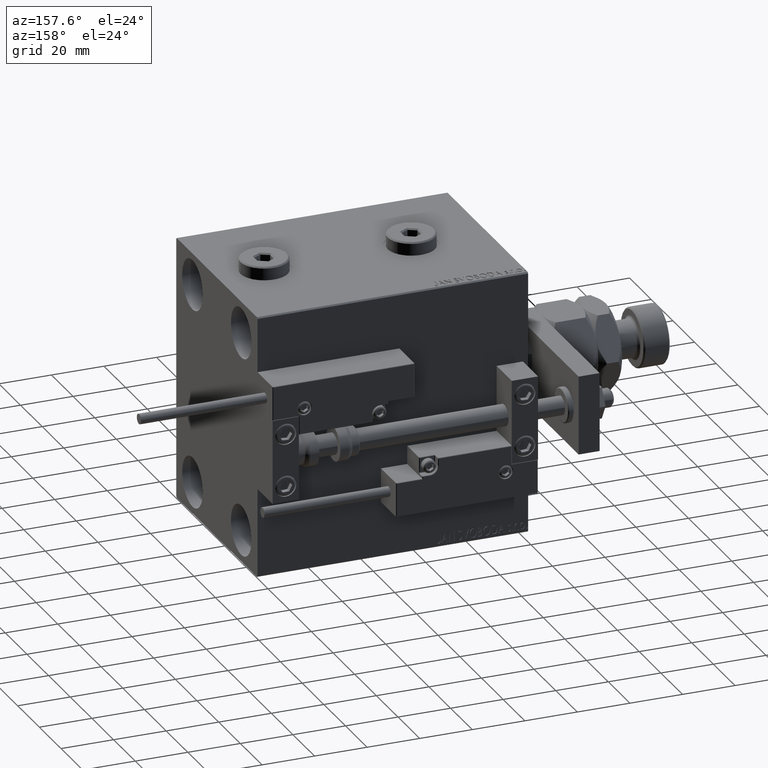
[diagram: clean part render]
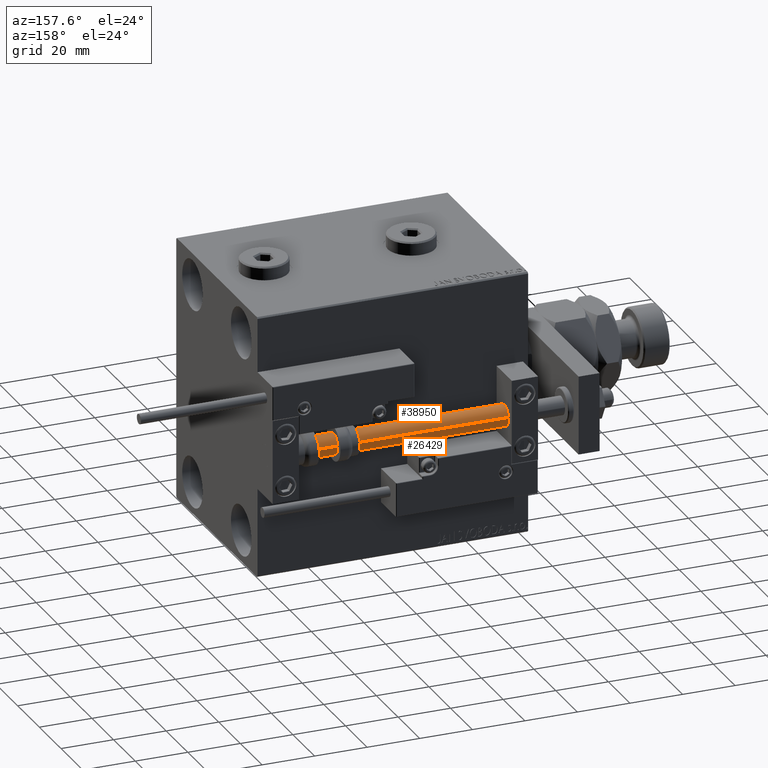
[diagram: same view with one multi-face feature highlighted, each face labeled with its STEP entity id]
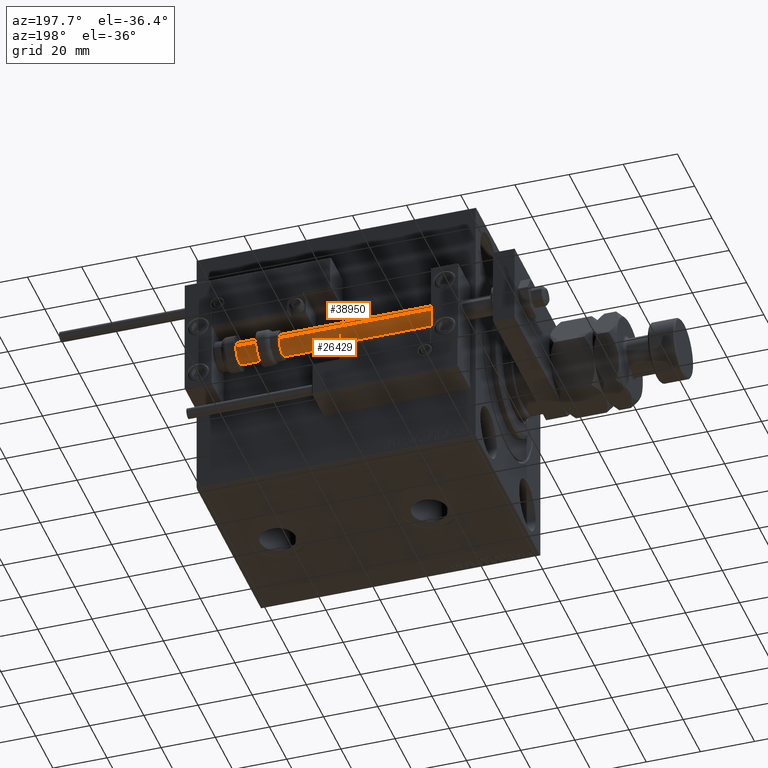
[diagram: same view with one multi-face feature highlighted, each face labeled with its STEP entity id]
A machine part, auxiliary view. The highlighted faces form ONE feature: a constant-radius fillet chain: 2 tangent blend faces with common blend radius 4 mm. The faces share edges in the B-rep.
A second angle (auxiliary view) of the same feature is appended — it is thin or edge-on in the first view.
Their STEP definitions:
[1] entity #38950 (Cylinder):
#886 = CARTESIAN_POINT ( 'NONE',  ( -4.000000000000000000, 0.000000000000000000, 103.0000000000000000 ) ) ;
#5101 = LINE ( 'NONE', #45842, #50849 ) ;
#5616 = CARTESIAN_POINT ( 'NONE',  ( -4.000000000000000000, 0.000000000000000000, 103.0000000000000000 ) ) ;
#5898 = DIRECTION ( 'NONE',  ( 0.000000000000000000, 0.000000000000000000, 1.000000000000000000 ) ) ;
#6479 = DIRECTION ( 'NONE',  ( -0.000000000000000000, -0.000000000000000000, 1.000000000000000000 ) ) ;
#10480 = EDGE_CURVE ( 'NONE', #19557, #21221, #27898, .T. ) ;
#15363 = CARTESIAN_POINT ( 'NONE',  ( 0.000000000000000000, 0.000000000000000000, 2.000000000000029310 ) ) ;
#16421 = AXIS2_PLACEMENT_3D ( 'NONE', #36899, #41211, #44733 ) ;
#19557 = VERTEX_POINT ( 'NONE', #26144 ) ;
#21221 = VERTEX_POINT ( 'NONE', #5616 ) ;
#23220 = ORIENTED_EDGE ( 'NONE', *, *, #45728, .F. ) ;
#24263 = CYLINDRICAL_SURFACE ( 'NONE', #16421, 4.000000000000000000 ) ;
#24595 = ORIENTED_EDGE ( 'NONE', *, *, #37181, .T. ) ;
#25347 = DIRECTION ( 'NONE',  ( -0.000000000000000000, -0.000000000000000000, -1.000000000000000000 ) ) ;
#26144 = CARTESIAN_POINT ( 'NONE',  ( 4.000000000000000000, 4.898587196589412829E-16, 103.0000000000000000 ) ) ;
#27898 = CIRCLE ( 'NONE', #31320, 4.000000000000000000 ) ;
#28620 = VECTOR ( 'NONE', #33787, 1000.000000000000000 ) ;
#29025 = ORIENTED_EDGE ( 'NONE', *, *, #10480, .F. ) ;
#31320 = AXIS2_PLACEMENT_3D ( 'NONE', #39070, #5898, #51478 ) ;
#33787 = DIRECTION ( 'NONE',  ( -0.000000000000000000, -0.000000000000000000, -1.000000000000000000 ) ) ;
#34382 = EDGE_LOOP ( 'NONE', ( #29025, #35426, #24595, #23220 ) ) ;
#34433 = AXIS2_PLACEMENT_3D ( 'NONE', #15363, #6479, #44495 ) ;
#35426 = ORIENTED_EDGE ( 'NONE', *, *, #40663, .T. ) ;
#36899 = CARTESIAN_POINT ( 'NONE',  ( 0.000000000000000000, 0.000000000000000000, 103.0000000000000000 ) ) ;
#37181 = EDGE_CURVE ( 'NONE', #48545, #39301, #39600, .T. ) ;
#37833 = LINE ( 'NONE', #886, #28620 ) ;
#38950 = ADVANCED_FACE ( 'NONE', ( #45540 ), #24263, .T. ) ;
#39070 = CARTESIAN_POINT ( 'NONE',  ( 0.000000000000000000, 0.000000000000000000, 103.0000000000000000 ) ) ;
#39301 = VERTEX_POINT ( 'NONE', #40103 ) ;
#39600 = CIRCLE ( 'NONE', #34433, 4.000000000000000000 ) ;
#40103 = CARTESIAN_POINT ( 'NONE',  ( -4.000000000000000000, 0.000000000000000000, 2.000000000000029310 ) ) ;
#40663 = EDGE_CURVE ( 'NONE', #19557, #48545, #5101, .T. ) ;
#41211 = DIRECTION ( 'NONE',  ( -0.000000000000000000, -0.000000000000000000, -1.000000000000000000 ) ) ;
#44495 = DIRECTION ( 'NONE',  ( 1.000000000000000000, 0.000000000000000000, 0.000000000000000000 ) ) ;
#44733 = DIRECTION ( 'NONE',  ( -1.000000000000000000, 0.000000000000000000, 0.000000000000000000 ) ) ;
#45135 = CARTESIAN_POINT ( 'NONE',  ( 4.000000000000000000, 4.898587196589412829E-16, 2.000000000000029310 ) ) ;
#45540 = FACE_OUTER_BOUND ( 'NONE', #34382, .T. ) ;
#45728 = EDGE_CURVE ( 'NONE', #21221, #39301, #37833, .T. ) ;
#45842 = CARTESIAN_POINT ( 'NONE',  ( 4.000000000000000000, 4.898587196589412829E-16, 103.0000000000000000 ) ) ;
#48545 = VERTEX_POINT ( 'NONE', #45135 ) ;
#50849 = VECTOR ( 'NONE', #25347, 1000.000000000000000 ) ;
#51478 = DIRECTION ( 'NONE',  ( 1.000000000000000000, 0.000000000000000000, 0.000000000000000000 ) ) ;
[2] entity #26429 (Cylinder):
#886 = CARTESIAN_POINT ( 'NONE',  ( -4.000000000000000000, 0.000000000000000000, 103.0000000000000000 ) ) ;
#1962 = FACE_OUTER_BOUND ( 'NONE', #4301, .T. ) ;
#3552 = CARTESIAN_POINT ( 'NONE',  ( 0.000000000000000000, 0.000000000000000000, 103.0000000000000000 ) ) ;
#4220 = DIRECTION ( 'NONE',  ( -0.000000000000000000, -0.000000000000000000, 1.000000000000000000 ) ) ;
#4301 = EDGE_LOOP ( 'NONE', ( #26137, #45289, #47216, #45025 ) ) ;
#5101 = LINE ( 'NONE', #45842, #50849 ) ;
#5616 = CARTESIAN_POINT ( 'NONE',  ( -4.000000000000000000, 0.000000000000000000, 103.0000000000000000 ) ) ;
#8353 = CIRCLE ( 'NONE', #29039, 4.000000000000000000 ) ;
#10310 = CARTESIAN_POINT ( 'NONE',  ( 0.000000000000000000, 0.000000000000000000, 103.0000000000000000 ) ) ;
#10591 = DIRECTION ( 'NONE',  ( 1.000000000000000000, 0.000000000000000000, 0.000000000000000000 ) ) ;
#11535 = DIRECTION ( 'NONE',  ( 1.000000000000000000, 0.000000000000000000, 0.000000000000000000 ) ) ;
#11620 = AXIS2_PLACEMENT_3D ( 'NONE', #3552, #47542, #10591 ) ;
#12419 = EDGE_CURVE ( 'NONE', #21221, #19557, #14194, .T. ) ;
#14194 = CIRCLE ( 'NONE', #11620, 4.000000000000000000 ) ;
#18410 = CYLINDRICAL_SURFACE ( 'NONE', #37618, 4.000000000000000000 ) ;
#19557 = VERTEX_POINT ( 'NONE', #26144 ) ;
#20685 = CARTESIAN_POINT ( 'NONE',  ( 0.000000000000000000, 0.000000000000000000, 2.000000000000029310 ) ) ;
#21221 = VERTEX_POINT ( 'NONE', #5616 ) ;
#21378 = EDGE_CURVE ( 'NONE', #39301, #48545, #8353, .T. ) ;
#25347 = DIRECTION ( 'NONE',  ( -0.000000000000000000, -0.000000000000000000, -1.000000000000000000 ) ) ;
#26137 = ORIENTED_EDGE ( 'NONE', *, *, #40663, .F. ) ;
#26144 = CARTESIAN_POINT ( 'NONE',  ( 4.000000000000000000, 4.898587196589412829E-16, 103.0000000000000000 ) ) ;
#26429 = ADVANCED_FACE ( 'NONE', ( #1962 ), #18410, .T. ) ;
#28620 = VECTOR ( 'NONE', #33787, 1000.000000000000000 ) ;
#29039 = AXIS2_PLACEMENT_3D ( 'NONE', #20685, #4220, #11535 ) ;
#31081 = DIRECTION ( 'NONE',  ( -0.000000000000000000, -0.000000000000000000, -1.000000000000000000 ) ) ;
#33787 = DIRECTION ( 'NONE',  ( -0.000000000000000000, -0.000000000000000000, -1.000000000000000000 ) ) ;
#37618 = AXIS2_PLACEMENT_3D ( 'NONE', #10310, #31081, #47548 ) ;
#37833 = LINE ( 'NONE', #886, #28620 ) ;
#39301 = VERTEX_POINT ( 'NONE', #40103 ) ;
#40103 = CARTESIAN_POINT ( 'NONE',  ( -4.000000000000000000, 0.000000000000000000, 2.000000000000029310 ) ) ;
#40663 = EDGE_CURVE ( 'NONE', #19557, #48545, #5101, .T. ) ;
#45025 = ORIENTED_EDGE ( 'NONE', *, *, #21378, .T. ) ;
#45135 = CARTESIAN_POINT ( 'NONE',  ( 4.000000000000000000, 4.898587196589412829E-16, 2.000000000000029310 ) ) ;
#45289 = ORIENTED_EDGE ( 'NONE', *, *, #12419, .F. ) ;
#45728 = EDGE_CURVE ( 'NONE', #21221, #39301, #37833, .T. ) ;
#45842 = CARTESIAN_POINT ( 'NONE',  ( 4.000000000000000000, 4.898587196589412829E-16, 103.0000000000000000 ) ) ;
#47216 = ORIENTED_EDGE ( 'NONE', *, *, #45728, .T. ) ;
#47542 = DIRECTION ( 'NONE',  ( 0.000000000000000000, 0.000000000000000000, 1.000000000000000000 ) ) ;
#47548 = DIRECTION ( 'NONE',  ( -1.000000000000000000, 0.000000000000000000, 0.000000000000000000 ) ) ;
#48545 = VERTEX_POINT ( 'NONE', #45135 ) ;
#50849 = VECTOR ( 'NONE', #25347, 1000.000000000000000 ) ;